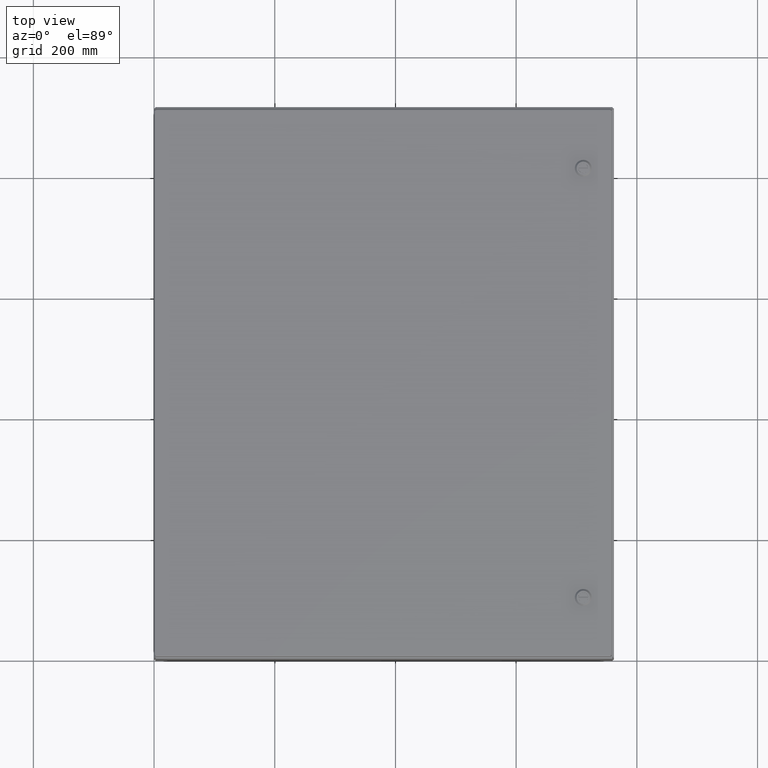
[diagram: clean part render]
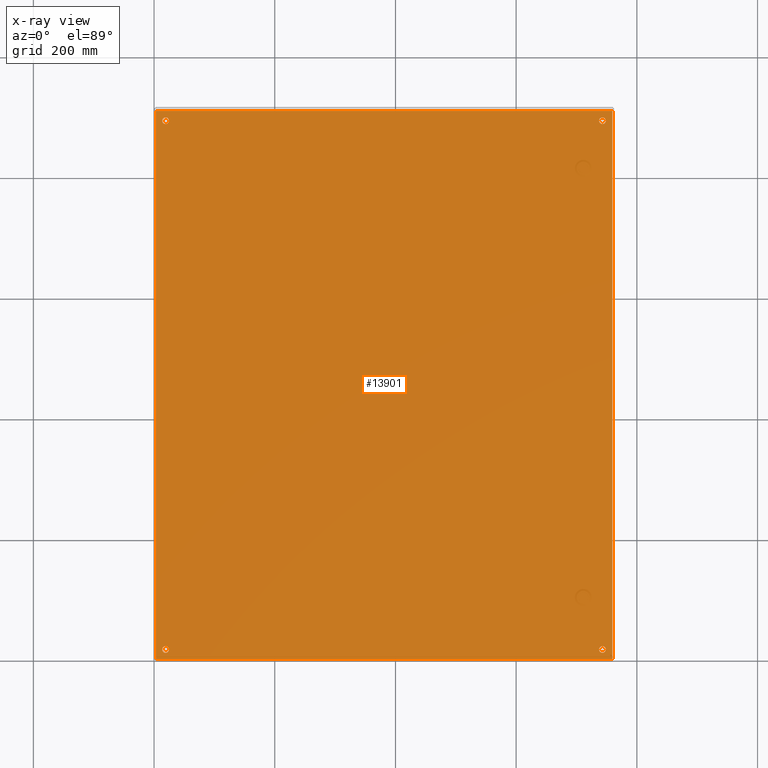
[diagram: x-ray — body ghosted, one internal face saturated and labeled with its STEP entity id]
A machine part, top view, then the same camera in x-ray: the body is ghosted and one INTERNAL B-rep face — a face not visible from any outside direction — is saturated and labeled: STEP entity #13901.
In plain terms, the highlighted planar face has unit normal (0, 0, 1).
Its self-contained STEP definition (entity closure, byte-faithful):
#526=FACE_BOUND('',#2652,.T.);
#527=FACE_BOUND('',#2653,.T.);
#528=FACE_BOUND('',#2654,.T.);
#529=FACE_BOUND('',#2655,.T.);
#729=CIRCLE('',#14719,0.21875);
#745=CIRCLE('',#14783,0.21875);
#746=CIRCLE('',#14805,0.21875);
#747=CIRCLE('',#14823,0.21875);
#1289=PLANE('',#14826);
#1743=FACE_OUTER_BOUND('',#2651,.T.);
#2651=EDGE_LOOP('',(#9720,#9721,#9722,#9723));
#2652=EDGE_LOOP('',(#9724));
#2653=EDGE_LOOP('',(#9725));
#2654=EDGE_LOOP('',(#9726));
#2655=EDGE_LOOP('',(#9727));
#3936=LINE('',#20205,#5017);
#3994=LINE('',#20645,#5075);
#4043=LINE('',#21231,#5124);
#4047=LINE('',#21415,#5128);
#5017=VECTOR('',#16186,35.7895);
#5075=VECTOR('',#16342,29.7895);
#5124=VECTOR('',#16465,35.7895);
#5128=VECTOR('',#16475,29.7895);
#6093=VERTEX_POINT('',#20092);
#6119=VERTEX_POINT('',#20203);
#6120=VERTEX_POINT('',#20204);
#6210=VERTEX_POINT('',#20641);
#6211=VERTEX_POINT('',#20644);
#6248=VERTEX_POINT('',#20812);
#6274=VERTEX_POINT('',#21230);
#6276=VERTEX_POINT('',#21285);
#7355=EDGE_CURVE('',#6093,#6093,#729,.T.);
#7387=EDGE_CURVE('',#6119,#6120,#3936,.T.);
#7501=EDGE_CURVE('',#6210,#6210,#745,.T.);
#7502=EDGE_CURVE('',#6211,#6119,#3994,.T.);
#7551=EDGE_CURVE('',#6248,#6248,#746,.T.);
#7601=EDGE_CURVE('',#6274,#6211,#4043,.T.);
#7607=EDGE_CURVE('',#6276,#6276,#747,.T.);
#7616=EDGE_CURVE('',#6120,#6274,#4047,.T.);
#9720=ORIENTED_EDGE('',*,*,#7601,.T.);
#9721=ORIENTED_EDGE('',*,*,#7502,.T.);
#9722=ORIENTED_EDGE('',*,*,#7387,.T.);
#9723=ORIENTED_EDGE('',*,*,#7616,.T.);
#9724=ORIENTED_EDGE('',*,*,#7355,.T.);
#9725=ORIENTED_EDGE('',*,*,#7607,.T.);
#9726=ORIENTED_EDGE('',*,*,#7501,.T.);
#9727=ORIENTED_EDGE('',*,*,#7551,.T.);
#13901=ADVANCED_FACE('',(#1743,#526,#527,#528,#529),#1289,.T.);
#14719=AXIS2_PLACEMENT_3D('',#20093,#16140,#16141);
#14783=AXIS2_PLACEMENT_3D('',#20642,#16338,#16339);
#14805=AXIS2_PLACEMENT_3D('',#20813,#16411,#16412);
#14823=AXIS2_PLACEMENT_3D('',#21286,#16470,#16471);
#14826=AXIS2_PLACEMENT_3D('',#21796,#16484,#16485);
#16140=DIRECTION('center_axis',(0.,0.,-1.));
#16141=DIRECTION('ref_axis',(1.,0.,0.));
#16186=DIRECTION('',(3.06545258876366E-16,-1.,0.));
#16338=DIRECTION('center_axis',(0.,0.,-1.));
#16339=DIRECTION('ref_axis',(1.,0.,0.));
#16342=DIRECTION('',(-1.,0.,0.));
#16411=DIRECTION('center_axis',(0.,0.,-1.));
#16412=DIRECTION('ref_axis',(1.,0.,0.));
#16465=DIRECTION('',(0.,1.,0.));
#16470=DIRECTION('center_axis',(0.,0.,-1.));
#16471=DIRECTION('ref_axis',(1.,0.,0.));
#16475=DIRECTION('',(1.,0.,0.));
#16484=DIRECTION('center_axis',(0.,0.,1.));
#16485=DIRECTION('ref_axis',(1.,0.,0.));
#20092=CARTESIAN_POINT('',(0.531249999999996,0.750000000000002,0.074));
#20093=CARTESIAN_POINT('Origin',(0.749999999999996,0.750000000000002,0.074));
#20203=CARTESIAN_POINT('',(0.10524999999999,35.89475,0.074));
#20204=CARTESIAN_POINT('',(0.105250000000007,0.105250000000007,0.074));
#20205=CARTESIAN_POINT('',(0.105250000000004,9.052625,0.074));
#20641=CARTESIAN_POINT('',(0.531249999999993,35.25,0.074));
#20642=CARTESIAN_POINT('Origin',(0.749999999999993,35.25,0.074));
#20644=CARTESIAN_POINT('',(29.89475,35.89475,0.074));
#20645=CARTESIAN_POINT('',(7.55262499999999,35.89475,0.074));
#20812=CARTESIAN_POINT('',(29.03125,0.749999999999999,0.074));
#20813=CARTESIAN_POINT('Origin',(29.25,0.749999999999999,0.074));
#21230=CARTESIAN_POINT('',(29.89475,0.105250000000007,0.074));
#21231=CARTESIAN_POINT('',(29.89475,26.947375,0.074));
#21285=CARTESIAN_POINT('',(29.03125,35.25,0.074));
#21286=CARTESIAN_POINT('Origin',(29.25,35.25,0.074));
#21415=CARTESIAN_POINT('',(22.447375,0.105250000000001,0.074));
#21796=CARTESIAN_POINT('Origin',(15.,18.,0.074));